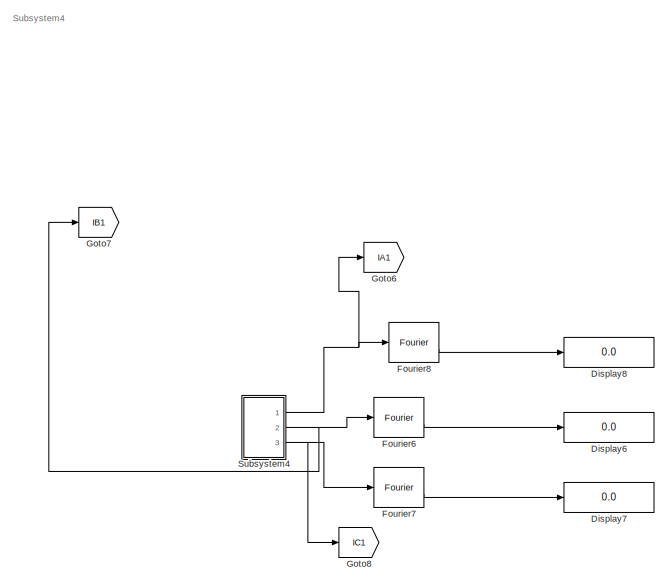
[diagram: root canvas - part 1/7, top center region]
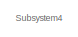
[diagram: root canvas - part 2/7, top left region]
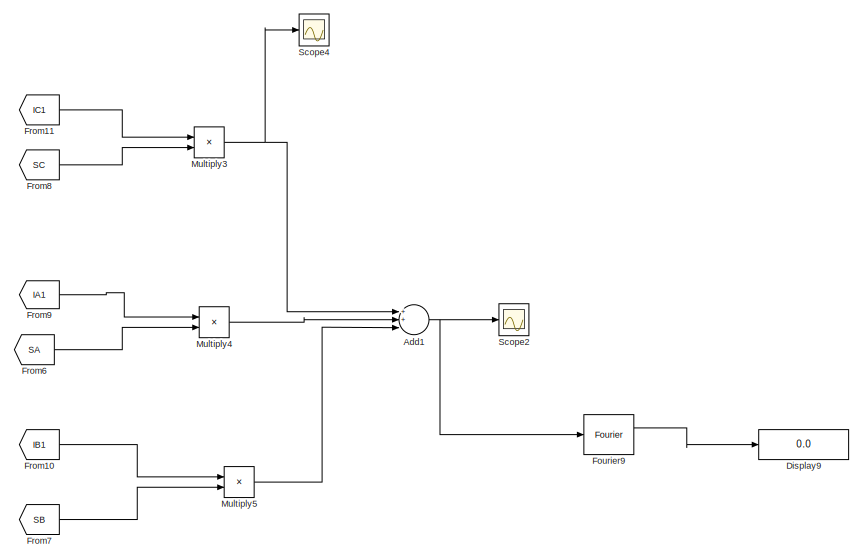
[diagram: root canvas - part 3/7, top right region]
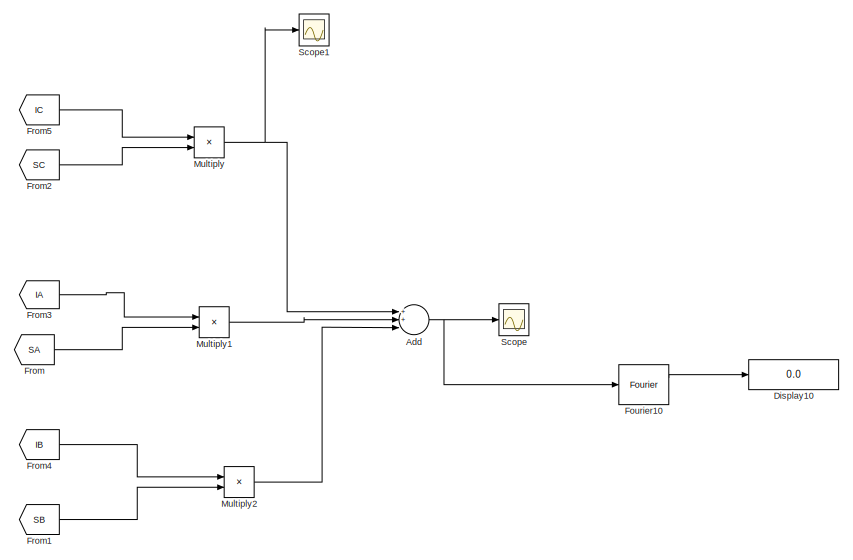
[diagram: root canvas - part 4/7, top center region]
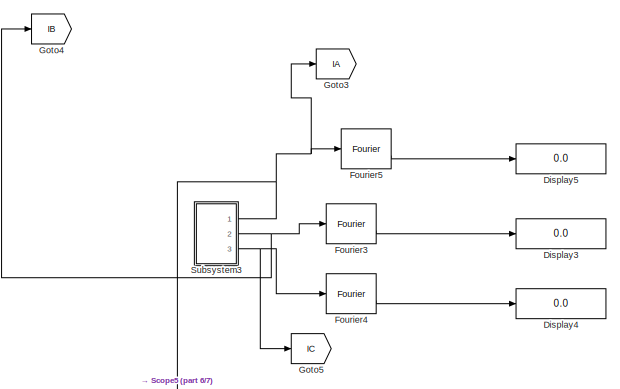
[diagram: root canvas - part 5/7, top left region]
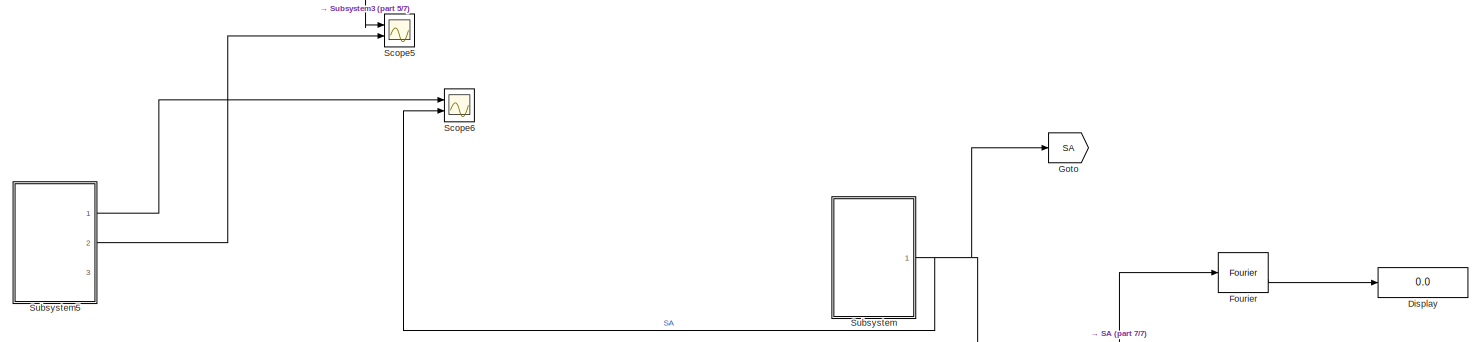
[diagram: root canvas - part 6/7, middle left region]
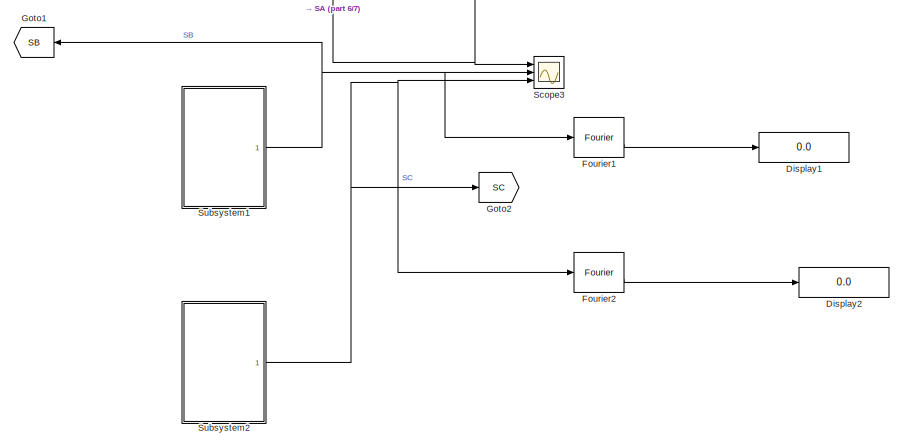
[diagram: root canvas - part 7/7, bottom left region]
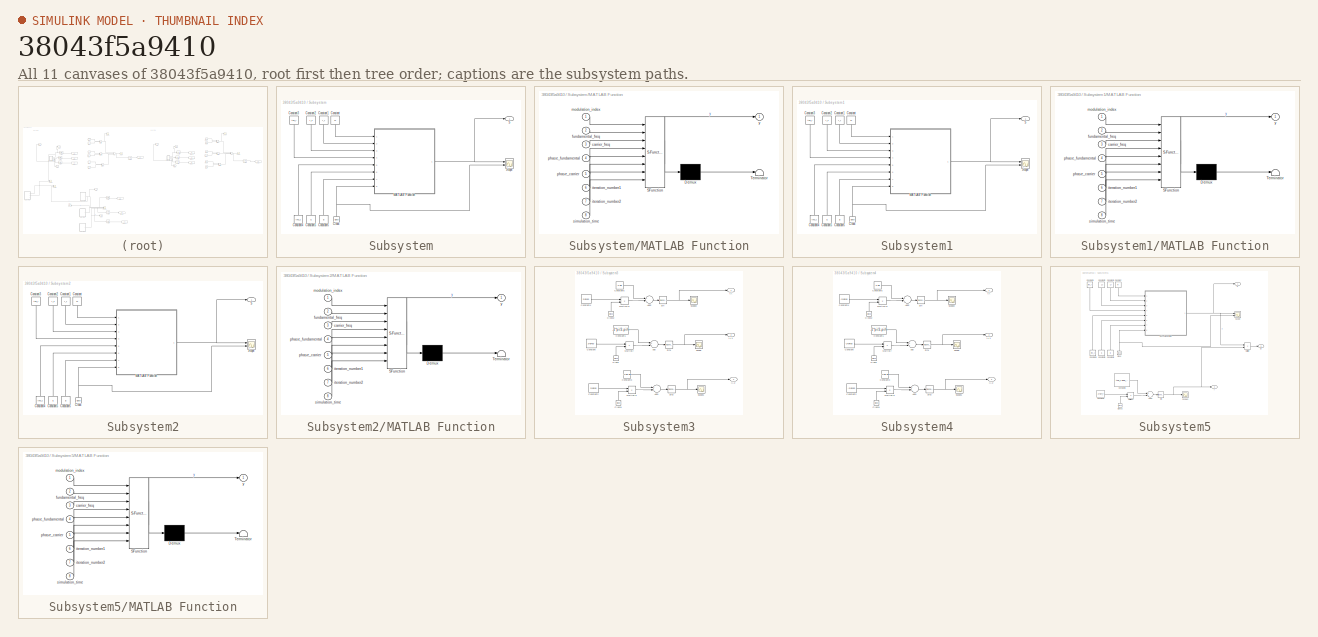
[diagram: thumbnail index - all 11 canvases of the model, root first then tree order]
MODEL slx_38043f5a9410
KIND model
CONFIG AbsTol = auto
CONFIG EnableMultiTasking = off
CONFIG FixedStep =     2.5000e-06
CONFIG MaxStep = auto
CONFIG MinStep = auto
CONFIG RelTol = 1e-3
CONFIG SampleTimeConstraint = Unconstrained
CONFIG Solver = FixedStepAuto
CONFIG SolverName = FixedStepAuto
CONFIG StartTime = 0.0
CONFIG StopTime = 0.08
BLOCK [Sum] Add
  InputSameDT = off
  Inputs = 3
  OutDataTypeStr = Inherit: Inherit via internal rule
  Ports = [3, 1]
  SaturateOnIntegerOverflow = off
BLOCK [Sum] Add1
  InputSameDT = off
  Inputs = 3
  OutDataTypeStr = Inherit: Inherit via internal rule
  Ports = [3, 1]
  SaturateOnIntegerOverflow = off
BLOCK [Display] Display
  Decimation = 1
  Ports = [1]
BLOCK [Display] Display1
  Decimation = 1
  Ports = [1]
BLOCK [Display] Display10
  Decimation = 1
  Ports = [1]
BLOCK [Display] Display2
  Decimation = 1
  Ports = [1]
BLOCK [Display] Display3
  Decimation = 1
  Ports = [1]
BLOCK [Display] Display4
  Decimation = 1
  Ports = [1]
BLOCK [Display] Display5
  Decimation = 1
  Ports = [1]
BLOCK [Display] Display6
  Decimation = 1
  Ports = [1]
BLOCK [Display] Display7
  Decimation = 1
  Ports = [1]
BLOCK [Display] Display8
  Decimation = 1
  Ports = [1]
BLOCK [Display] Display9
  Decimation = 1
  Ports = [1]
BLOCK [Reference] Fourier  REF=powerlib_meascontrol/Measurements/Fourier
  Ports = [1, 2]
  SourceBlock = powerlib_meascontrol/Measurements/Fourier
  SourceProductBaseCode = PS
  SourceProductName = Simscape Power Systems
  SourceType = Fourier
BLOCK [Reference] Fourier1  REF=powerlib_meascontrol/Measurements/Fourier
  Ports = [1, 2]
  SourceBlock = powerlib_meascontrol/Measurements/Fourier
  SourceProductBaseCode = PS
  SourceProductName = Simscape Power Systems
  SourceType = Fourier
BLOCK [Reference] Fourier10  REF=powerlib_meascontrol/Measurements/Fourier
  Ports = [1, 2]
  SourceBlock = powerlib_meascontrol/Measurements/Fourier
  SourceProductBaseCode = PS
  SourceProductName = Simscape Power Systems
  SourceType = Fourier
BLOCK [Reference] Fourier2  REF=powerlib_meascontrol/Measurements/Fourier
  Ports = [1, 2]
  SourceBlock = powerlib_meascontrol/Measurements/Fourier
  SourceProductBaseCode = PS
  SourceProductName = Simscape Power Systems
  SourceType = Fourier
BLOCK [Reference] Fourier3  REF=powerlib_meascontrol/Measurements/Fourier
  Ports = [1, 2]
  SourceBlock = powerlib_meascontrol/Measurements/Fourier
  SourceProductBaseCode = PS
  SourceProductName = Simscape Power Systems
  SourceType = Fourier
BLOCK [Reference] Fourier4  REF=powerlib_meascontrol/Measurements/Fourier
  Ports = [1, 2]
  SourceBlock = powerlib_meascontrol/Measurements/Fourier
  SourceProductBaseCode = PS
  SourceProductName = Simscape Power Systems
  SourceType = Fourier
BLOCK [Reference] Fourier5  REF=powerlib_meascontrol/Measurements/Fourier
  Ports = [1, 2]
  SourceBlock = powerlib_meascontrol/Measurements/Fourier
  SourceProductBaseCode = PS
  SourceProductName = Simscape Power Systems
  SourceType = Fourier
BLOCK [Reference] Fourier6  REF=powerlib_meascontrol/Measurements/Fourier
  Ports = [1, 2]
  SourceBlock = powerlib_meascontrol/Measurements/Fourier
  SourceProductBaseCode = PS
  SourceProductName = Simscape Power Systems
  SourceType = Fourier
BLOCK [Reference] Fourier7  REF=powerlib_meascontrol/Measurements/Fourier
  Ports = [1, 2]
  SourceBlock = powerlib_meascontrol/Measurements/Fourier
  SourceProductBaseCode = PS
  SourceProductName = Simscape Power Systems
  SourceType = Fourier
BLOCK [Reference] Fourier8  REF=powerlib_meascontrol/Measurements/Fourier
  Ports = [1, 2]
  SourceBlock = powerlib_meascontrol/Measurements/Fourier
  SourceProductBaseCode = PS
  SourceProductName = Simscape Power Systems
  SourceType = Fourier
BLOCK [Reference] Fourier9  REF=powerlib_meascontrol/Measurements/Fourier
  Ports = [1, 2]
  SourceBlock = powerlib_meascontrol/Measurements/Fourier
  SourceProductBaseCode = PS
  SourceProductName = Simscape Power Systems
  SourceType = Fourier
BLOCK [From] From
  GotoTag = SA
BLOCK [From] From1
  GotoTag = SB
BLOCK [From] From10
  GotoTag = IB1
BLOCK [From] From11
  GotoTag = IC1
BLOCK [From] From2
  GotoTag = SC
BLOCK [From] From3
  GotoTag = IA
BLOCK [From] From4
  GotoTag = IB
BLOCK [From] From5
  GotoTag = IC
BLOCK [From] From6
  GotoTag = SA
BLOCK [From] From7
  GotoTag = SB
BLOCK [From] From8
  GotoTag = SC
BLOCK [From] From9
  GotoTag = IA1
BLOCK [Goto] Goto
  GotoTag = SA
BLOCK [Goto] Goto1
  GotoTag = SB
BLOCK [Goto] Goto2
  GotoTag = SC
BLOCK [Goto] Goto3
  GotoTag = IA
BLOCK [Goto] Goto4
  GotoTag = IB
BLOCK [Goto] Goto5
  GotoTag = IC
BLOCK [Goto] Goto6
  GotoTag = IA1
BLOCK [Goto] Goto7
  GotoTag = IB1
BLOCK [Goto] Goto8
  GotoTag = IC1
BLOCK [Product] Multiply
  InputSameDT = off
  OutDataTypeStr = Inherit: Inherit via internal rule
  Ports = [2, 1]
  RndMeth = Floor
  SaturateOnIntegerOverflow = off
BLOCK [Product] Multiply1
  InputSameDT = off
  OutDataTypeStr = Inherit: Inherit via internal rule
  Ports = [2, 1]
  RndMeth = Floor
  SaturateOnIntegerOverflow = off
BLOCK [Product] Multiply2
  InputSameDT = off
  OutDataTypeStr = Inherit: Inherit via internal rule
  Ports = [2, 1]
  RndMeth = Floor
  SaturateOnIntegerOverflow = off
BLOCK [Product] Multiply3
  InputSameDT = off
  OutDataTypeStr = Inherit: Inherit via internal rule
  Ports = [2, 1]
  RndMeth = Floor
  SaturateOnIntegerOverflow = off
BLOCK [Product] Multiply4
  InputSameDT = off
  OutDataTypeStr = Inherit: Inherit via internal rule
  Ports = [2, 1]
  RndMeth = Floor
  SaturateOnIntegerOverflow = off
BLOCK [Product] Multiply5
  InputSameDT = off
  OutDataTypeStr = Inherit: Inherit via internal rule
  Ports = [2, 1]
  RndMeth = Floor
  SaturateOnIntegerOverflow = off
BLOCK [Scope] Scope
  Floating = off
  NumInputPorts = 1
  Ports = [1]
  ScopeSpecificationString = Simulink.scopes.TimeScopeBlockCfg('CurrentConfiguration', extmgr.ConfigurationSet(extmgr.Configuration('Core','General UI',true),extmgr.Configuration('Core','Source UI',true),extmgr.Configuration('Sources','WiredSimulink',true,'DataLoggingVariableName','ScopeData4'),extmgr.Configuration('Visuals','Time Domain',true,'SerializedDisplays',{struct('MinYLimReal','-0.27017','MaxYLimReal','1.19894','YLab...<+1439ch>
BLOCK [Scope] Scope1
  Floating = off
  NumInputPorts = 1
  Ports = [1]
  ScopeSpecificationString = Simulink.scopes.TimeScopeBlockCfg('CurrentConfiguration', extmgr.ConfigurationSet(extmgr.Configuration('Core','General UI',true),extmgr.Configuration('Core','Source UI',true),extmgr.Configuration('Sources','WiredSimulink',true,'DataLoggingVariableName','ScopeData5'),extmgr.Configuration('Visuals','Time Domain',true,'SerializedDisplays',{struct('MinYLimReal','-1.32626','MaxYLimReal','1.40179','YLab...<+1423ch>
BLOCK [Scope] Scope2
  Floating = off
  NumInputPorts = 1
  Ports = [1]
  ScopeSpecificationString = Simulink.scopes.TimeScopeBlockCfg('CurrentConfiguration', extmgr.ConfigurationSet(extmgr.Configuration('Core','General UI',true),extmgr.Configuration('Core','Source UI',true),extmgr.Configuration('Sources','WiredSimulink',true,'DataLoggingVariableName','ScopeData6'),extmgr.Configuration('Visuals','Time Domain',true,'SerializedDisplays',{struct('MinYLimReal','-1.31764','MaxYLimReal','1.28317','YLab...<+1441ch>
BLOCK [Scope] Scope3
  Floating = off
  NumInputPorts = 3
  Ports = [3]
  ScopeSpecificationString = Simulink.scopes.TimeScopeBlockCfg('CurrentConfiguration', extmgr.ConfigurationSet(extmgr.Configuration('Core','General UI',true,'FigureColor',[0.941176470588235 0.941176470588235 0.941176470588235]),extmgr.Configuration('Core','Source UI',true),extmgr.Configuration('Sources','WiredSimulink',true,'DataLoggingVariableName','ScopeData4'),extmgr.Configuration('Visuals','Time Domain',true,'SerializedDi...<+3165ch>
BLOCK [Scope] Scope4
  Floating = off
  NumInputPorts = 1
  Ports = [1]
  ScopeSpecificationString = Simulink.scopes.TimeScopeBlockCfg('CurrentConfiguration', extmgr.ConfigurationSet(extmgr.Configuration('Core','General UI',true),extmgr.Configuration('Core','Source UI',true),extmgr.Configuration('Sources','WiredSimulink',true,'DataLoggingVariableName','ScopeData7'),extmgr.Configuration('Visuals','Time Domain',true,'SerializedDisplays',{struct('MinYLimReal','-1.31418','MaxYLimReal','1.32978','YLab...<+1423ch>
BLOCK [Scope] Scope5
  Floating = off
  NumInputPorts = 2
  Ports = [2]
  ScopeSpecificationString = Simulink.scopes.TimeScopeBlockCfg('CurrentConfiguration', extmgr.ConfigurationSet(extmgr.Configuration('Core','General UI',true),extmgr.Configuration('Core','Source UI',true),extmgr.Configuration('Sources','WiredSimulink',true,'DataLoggingVariableName','ScopeData2'),extmgr.Configuration('Visuals','Time Domain',true,'SerializedDisplays',{struct('MinYLimReal','-1.25','MaxYLimReal','1.25','YLabelReal...<+1368ch>
BLOCK [Scope] Scope6
  Floating = off
  NumInputPorts = 2
  Ports = [2]
  ScopeSpecificationString = Simulink.scopes.TimeScopeBlockCfg('CurrentConfiguration', extmgr.ConfigurationSet(extmgr.Configuration('Core','General UI',true),extmgr.Configuration('Core','Source UI',true),extmgr.Configuration('Sources','WiredSimulink',true,'DataLoggingVariableName','ScopeData3'),extmgr.Configuration('Visuals','Time Domain',true,'SerializedDisplays',{struct('MinYLimReal','-0.1825','MaxYLimReal','1.21085','YLabe...<+1467ch>
BLOCK [SubSystem] Subsystem
  Ports = [0, 1]
  RequestExecContextInheritance = off
BLOCK [Clock] Subsystem/Clock
  Decimation = 1
  DisplayTime = on
BLOCK [Constant] Subsystem/Constant
  Value = m
BLOCK [Constant] Subsystem/Constant1
  Value = f_f
BLOCK [Constant] Subsystem/Constant2
  Value = f_s
BLOCK [Constant] Subsystem/Constant3
  Value = the_f
BLOCK [Constant] Subsystem/Constant4
  Value = the_c
BLOCK [Constant] Subsystem/Constant5
  Value = i1
BLOCK [Constant] Subsystem/Constant6
  Value = i2
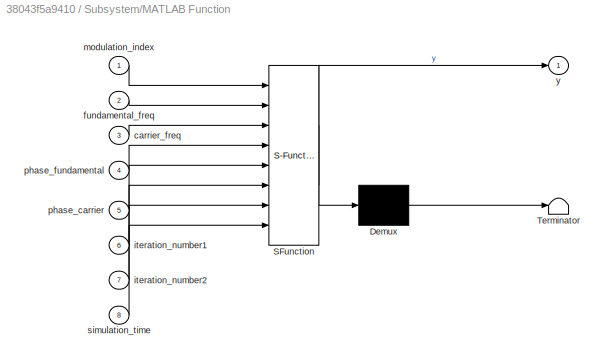
BLOCK [SubSystem] Subsystem/MATLAB Function
  ErrorFcn = Stateflow.Translate.translate
  PermitHierarchicalResolution = ExplicitOnly
  Ports = [8, 1]
  RequestExecContextInheritance = off
  SFBlockType = MATLAB Function
  TreatAsAtomicUnit = on
BLOCK [Demux] Subsystem/MATLAB Function/ Demux 
  Outputs = 1
  Ports = [1, 1]
BLOCK [S-Function] Subsystem/MATLAB Function/ SFunction 
  EnableBusSupport = on
  FunctionName = sf_sfun
  PortCounts = [8 2]
  Ports = [8, 2]
  SFcnIsStateOwnerBlock = off
  SFunctionDeploymentMode = off
  Tag = Stateflow S-Function switching_mask 2
BLOCK [Terminator] Subsystem/MATLAB Function/ Terminator 
BLOCK [Inport] Subsystem/MATLAB Function/carrier_freq
  IconDisplay = Port number
  Port = 3
BLOCK [Inport] Subsystem/MATLAB Function/fundamental_freq
  IconDisplay = Port number
  Port = 2
BLOCK [Inport] Subsystem/MATLAB Function/iteration_number1
  IconDisplay = Port number
  Port = 6
BLOCK [Inport] Subsystem/MATLAB Function/iteration_number2
  IconDisplay = Port number
  Port = 7
BLOCK [Inport] Subsystem/MATLAB Function/modulation_index
  IconDisplay = Port number
BLOCK [Inport] Subsystem/MATLAB Function/phase_carrier
  IconDisplay = Port number
  Port = 5
BLOCK [Inport] Subsystem/MATLAB Function/phase_fundamental
  IconDisplay = Port number
  Port = 4
BLOCK [Inport] Subsystem/MATLAB Function/simulation_time
  IconDisplay = Port number
  Port = 8
BLOCK [Outport] Subsystem/MATLAB Function/y
  IconDisplay = Port number
BLOCK [Outport] Subsystem/S
  IconDisplay = Port number
BLOCK [Scope] Subsystem/Scope
  Floating = off
  NumInputPorts = 2
  Ports = [2]
  ScopeSpecificationString = Simulink.scopes.TimeScopeBlockCfg('CurrentConfiguration', extmgr.ConfigurationSet(extmgr.Configuration('Core','General UI',true),extmgr.Configuration('Core','Source UI',true),extmgr.Configuration('Sources','WiredSimulink',true),extmgr.Configuration('Visuals','Time Domain',true,'SerializedDisplays',{struct('MinYLimReal','-0.23876','MaxYLimReal','1.24537','YLabelReal','','MinYLimMag','0.00000','MaxY...<+1421ch>  <repeated x4 — deduplicated; at blocks: Scope>
BLOCK [SubSystem] Subsystem1
  Ports = [0, 1]
  RequestExecContextInheritance = off
BLOCK [Clock] Subsystem1/Clock
  Decimation = 1
  DisplayTime = on
BLOCK [Constant] Subsystem1/Constant
  Value = m
BLOCK [Constant] Subsystem1/Constant1
  Value = f_f
BLOCK [Constant] Subsystem1/Constant2
  Value = f_s
BLOCK [Constant] Subsystem1/Constant3
  Value = the_f
BLOCK [Constant] Subsystem1/Constant4
  Value = the_c
BLOCK [Constant] Subsystem1/Constant5
  Value = i1
BLOCK [Constant] Subsystem1/Constant6
  Value = i2
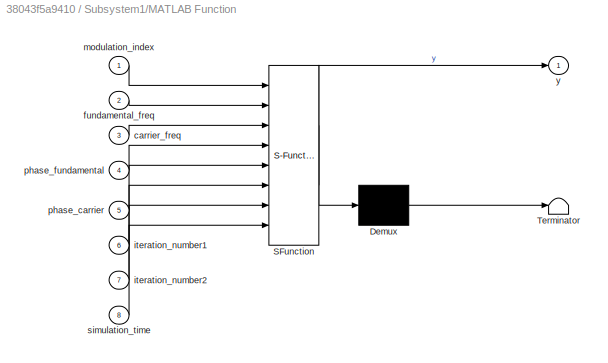
BLOCK [SubSystem] Subsystem1/MATLAB Function
  ErrorFcn = Stateflow.Translate.translate
  PermitHierarchicalResolution = ExplicitOnly
  Ports = [8, 1]
  RequestExecContextInheritance = off
  SFBlockType = MATLAB Function
  TreatAsAtomicUnit = on
BLOCK [Demux] Subsystem1/MATLAB Function/ Demux 
  Outputs = 1
  Ports = [1, 1]
BLOCK [S-Function] Subsystem1/MATLAB Function/ SFunction 
  EnableBusSupport = on
  FunctionName = sf_sfun
  PortCounts = [8 2]
  Ports = [8, 2]
  SFcnIsStateOwnerBlock = off
  SFunctionDeploymentMode = off
  Tag = Stateflow S-Function switching_mask 1
BLOCK [Terminator] Subsystem1/MATLAB Function/ Terminator 
BLOCK [Inport] Subsystem1/MATLAB Function/carrier_freq
  IconDisplay = Port number
  Port = 3
BLOCK [Inport] Subsystem1/MATLAB Function/fundamental_freq
  IconDisplay = Port number
  Port = 2
BLOCK [Inport] Subsystem1/MATLAB Function/iteration_number1
  IconDisplay = Port number
  Port = 6
BLOCK [Inport] Subsystem1/MATLAB Function/iteration_number2
  IconDisplay = Port number
  Port = 7
BLOCK [Inport] Subsystem1/MATLAB Function/modulation_index
  IconDisplay = Port number
BLOCK [Inport] Subsystem1/MATLAB Function/phase_carrier
  IconDisplay = Port number
  Port = 5
BLOCK [Inport] Subsystem1/MATLAB Function/phase_fundamental
  IconDisplay = Port number
  Port = 4
BLOCK [Inport] Subsystem1/MATLAB Function/simulation_time
  IconDisplay = Port number
  Port = 8
BLOCK [Outport] Subsystem1/MATLAB Function/y
  IconDisplay = Port number
BLOCK [Outport] Subsystem1/S
  IconDisplay = Port number
BLOCK [Scope] Subsystem1/Scope
  Floating = off
  NumInputPorts = 2
  Ports = [2]
BLOCK [SubSystem] Subsystem2
  Ports = [0, 1]
  RequestExecContextInheritance = off
BLOCK [Clock] Subsystem2/Clock
  Decimation = 1
  DisplayTime = on
BLOCK [Constant] Subsystem2/Constant
  Value = m
BLOCK [Constant] Subsystem2/Constant1
  Value = f_f
BLOCK [Constant] Subsystem2/Constant2
  Value = f_s
BLOCK [Constant] Subsystem2/Constant3
  Value = the_f
BLOCK [Constant] Subsystem2/Constant4
  Value = the_c
BLOCK [Constant] Subsystem2/Constant5
  Value = i1
BLOCK [Constant] Subsystem2/Constant6
  Value = i2
BLOCK [SubSystem] Subsystem2/MATLAB Function
  ErrorFcn = Stateflow.Translate.translate
  PermitHierarchicalResolution = ExplicitOnly
  Ports = [8, 1]
  RequestExecContextInheritance = off
  SFBlockType = MATLAB Function
  TreatAsAtomicUnit = on
BLOCK [Demux] Subsystem2/MATLAB Function/ Demux 
  Outputs = 1
  Ports = [1, 1]
BLOCK [S-Function] Subsystem2/MATLAB Function/ SFunction 
  EnableBusSupport = on
  FunctionName = sf_sfun
  PortCounts = [8 2]
  Ports = [8, 2]
  SFcnIsStateOwnerBlock = off
  SFunctionDeploymentMode = off
  Tag = Stateflow S-Function switching_mask 3
BLOCK [Terminator] Subsystem2/MATLAB Function/ Terminator 
BLOCK [Inport] Subsystem2/MATLAB Function/carrier_freq
  IconDisplay = Port number
  Port = 3
BLOCK [Inport] Subsystem2/MATLAB Function/fundamental_freq
  IconDisplay = Port number
  Port = 2
BLOCK [Inport] Subsystem2/MATLAB Function/iteration_number1
  IconDisplay = Port number
  Port = 6
BLOCK [Inport] Subsystem2/MATLAB Function/iteration_number2
  IconDisplay = Port number
  Port = 7
BLOCK [Inport] Subsystem2/MATLAB Function/modulation_index
  IconDisplay = Port number
BLOCK [Inport] Subsystem2/MATLAB Function/phase_carrier
  IconDisplay = Port number
  Port = 5
BLOCK [Inport] Subsystem2/MATLAB Function/phase_fundamental
  IconDisplay = Port number
  Port = 4
BLOCK [Inport] Subsystem2/MATLAB Function/simulation_time
  IconDisplay = Port number
  Port = 8
BLOCK [Outport] Subsystem2/MATLAB Function/y
  IconDisplay = Port number
BLOCK [Outport] Subsystem2/S
  IconDisplay = Port number
BLOCK [Scope] Subsystem2/Scope
  Floating = off
  NumInputPorts = 2
  Ports = [2]
BLOCK [SubSystem] Subsystem3
  Ports = [0, 3]
  RequestExecContextInheritance = off
BLOCK [Sum] Subsystem3/Add
  InputSameDT = off
  OutDataTypeStr = Inherit: Inherit via internal rule
  Ports = [2, 1]
  SaturateOnIntegerOverflow = off
BLOCK [Sum] Subsystem3/Add1
  InputSameDT = off
  OutDataTypeStr = Inherit: Inherit via internal rule
  Ports = [2, 1]
  SaturateOnIntegerOverflow = off
BLOCK [Sum] Subsystem3/Add2
  InputSameDT = off
  OutDataTypeStr = Inherit: Inherit via internal rule
  Ports = [2, 1]
  SaturateOnIntegerOverflow = off
BLOCK [Clock] Subsystem3/Clock
BLOCK [Clock] Subsystem3/Clock1
BLOCK [Clock] Subsystem3/Clock2
BLOCK [Constant] Subsystem3/Constant
  Value = 2*pi*50
BLOCK [Constant] Subsystem3/Constant1
  Value = -2*pi/3-pi/6
BLOCK [Constant] Subsystem3/Constant2
  Value = 2*pi*50
BLOCK [Constant] Subsystem3/Constant3
  Value = 2*pi/3-pi/6
BLOCK [Constant] Subsystem3/Constant4
  Value = 2*pi*50
BLOCK [Constant] Subsystem3/Constant5
  Value = 0-pi/6
BLOCK [Outport] Subsystem3/IA 
  IconDisplay = Port number
BLOCK [Outport] Subsystem3/IA 1
  IconDisplay = Port number
  Port = 2
BLOCK [Outport] Subsystem3/IA 2
  IconDisplay = Port number
  Port = 3
BLOCK [Product] Subsystem3/Multiply
  InputSameDT = off
  OutDataTypeStr = Inherit: Inherit via internal rule
  Ports = [2, 1]
  RndMeth = Floor
  SaturateOnIntegerOverflow = off
BLOCK [Product] Subsystem3/Multiply1
  InputSameDT = off
  OutDataTypeStr = Inherit: Inherit via internal rule
  Ports = [2, 1]
  RndMeth = Floor
  SaturateOnIntegerOverflow = off
BLOCK [Product] Subsystem3/Multiply2
  InputSameDT = off
  OutDataTypeStr = Inherit: Inherit via internal rule
  Ports = [2, 1]
  RndMeth = Floor
  SaturateOnIntegerOverflow = off
BLOCK [Scope] Subsystem3/Scope
  Floating = off
  NumInputPorts = 1
  Ports = [1]
  ScopeSpecificationString = Simulink.scopes.TimeScopeBlockCfg('CurrentConfiguration', extmgr.ConfigurationSet(extmgr.Configuration('Core','General UI',true),extmgr.Configuration('Core','Source UI',true),extmgr.Configuration('Sources','WiredSimulink',true,'DataLoggingVariableName','ScopeData1'),extmgr.Configuration('Visuals','Time Domain',true,'SerializedDisplays',{struct('MinYLimReal','-1.25','MaxYLimReal','1.25','YLabelReal...<+1378ch>
BLOCK [Scope] Subsystem3/Scope1
  Floating = off
  NumInputPorts = 1
  Ports = [1]
  ScopeSpecificationString = Simulink.scopes.TimeScopeBlockCfg('CurrentConfiguration', extmgr.ConfigurationSet(extmgr.Configuration('Core','General UI',true),extmgr.Configuration('Core','Source UI',true),extmgr.Configuration('Sources','WiredSimulink',true,'DataLoggingVariableName','ScopeData2'),extmgr.Configuration('Visuals','Time Domain',true,'SerializedDisplays',{struct('MinYLimReal','-1.25','MaxYLimReal','1.25','YLabelReal...<+1379ch>
BLOCK [Scope] Subsystem3/Scope2
  Floating = off
  NumInputPorts = 1
  Ports = [1]
  ScopeSpecificationString = Simulink.scopes.TimeScopeBlockCfg('CurrentConfiguration', extmgr.ConfigurationSet(extmgr.Configuration('Core','General UI',true),extmgr.Configuration('Core','Source UI',true),extmgr.Configuration('Sources','WiredSimulink',true,'DataLoggingVariableName','ScopeData3'),extmgr.Configuration('Visuals','Time Domain',true,'SerializedDisplays',{struct('MinYLimReal','-1.25','MaxYLimReal','1.25','YLabelReal...<+1376ch>
BLOCK [Trigonometry] Subsystem3/Sin
  Ports = [1, 1]
BLOCK [Trigonometry] Subsystem3/Sin1
  Ports = [1, 1]
BLOCK [Trigonometry] Subsystem3/Sin2
  Ports = [1, 1]
BLOCK [SubSystem] Subsystem4
  Ports = [0, 3]
  RequestExecContextInheritance = off
BLOCK [Sum] Subsystem4/Add
  InputSameDT = off
  OutDataTypeStr = Inherit: Inherit via internal rule
  Ports = [2, 1]
  SaturateOnIntegerOverflow = off
BLOCK [Sum] Subsystem4/Add1
  InputSameDT = off
  OutDataTypeStr = Inherit: Inherit via internal rule
  Ports = [2, 1]
  SaturateOnIntegerOverflow = off
BLOCK [Sum] Subsystem4/Add2
  InputSameDT = off
  OutDataTypeStr = Inherit: Inherit via internal rule
  Ports = [2, 1]
  SaturateOnIntegerOverflow = off
BLOCK [Clock] Subsystem4/Clock
BLOCK [Clock] Subsystem4/Clock1
BLOCK [Clock] Subsystem4/Clock2
BLOCK [Constant] Subsystem4/Constant
  Value = -2*pi*50
BLOCK [Constant] Subsystem4/Constant1
  Value = -2*pi/3-pi/6
BLOCK [Constant] Subsystem4/Constant2
  Value = -2*pi*50
BLOCK [Constant] Subsystem4/Constant3
  Value = 2*pi/3-pi/6
BLOCK [Constant] Subsystem4/Constant4
  Value = -2*pi*50
BLOCK [Constant] Subsystem4/Constant5
  Value = 0-pi/6
BLOCK [Outport] Subsystem4/IA 
  IconDisplay = Port number
BLOCK [Outport] Subsystem4/IA 1
  IconDisplay = Port number
  Port = 2
BLOCK [Outport] Subsystem4/IA 2
  IconDisplay = Port number
  Port = 3
BLOCK [Product] Subsystem4/Multiply
  InputSameDT = off
  OutDataTypeStr = Inherit: Inherit via internal rule
  Ports = [2, 1]
  RndMeth = Floor
  SaturateOnIntegerOverflow = off
BLOCK [Product] Subsystem4/Multiply1
  InputSameDT = off
  OutDataTypeStr = Inherit: Inherit via internal rule
  Ports = [2, 1]
  RndMeth = Floor
  SaturateOnIntegerOverflow = off
BLOCK [Product] Subsystem4/Multiply2
  InputSameDT = off
  OutDataTypeStr = Inherit: Inherit via internal rule
  Ports = [2, 1]
  RndMeth = Floor
  SaturateOnIntegerOverflow = off
BLOCK [Scope] Subsystem4/Scope
  Floating = off
  NumInputPorts = 1
  Ports = [1]
  ScopeSpecificationString = Simulink.scopes.TimeScopeBlockCfg('CurrentConfiguration', extmgr.ConfigurationSet(extmgr.Configuration('Core','General UI',true),extmgr.Configuration('Core','Source UI',true),extmgr.Configuration('Sources','WiredSimulink',true,'DataLoggingVariableName','ScopeData1'),extmgr.Configuration('Visuals','Time Domain',true,'SerializedDisplays',{struct('MinYLimReal','-1.25','MaxYLimReal','1.25','YLabelReal...<+1378ch>
BLOCK [Scope] Subsystem4/Scope1
  Floating = off
  NumInputPorts = 1
  Ports = [1]
  ScopeSpecificationString = Simulink.scopes.TimeScopeBlockCfg('CurrentConfiguration', extmgr.ConfigurationSet(extmgr.Configuration('Core','General UI',true),extmgr.Configuration('Core','Source UI',true),extmgr.Configuration('Sources','WiredSimulink',true,'DataLoggingVariableName','ScopeData2'),extmgr.Configuration('Visuals','Time Domain',true,'SerializedDisplays',{struct('MinYLimReal','-1.25','MaxYLimReal','1.25','YLabelReal...<+1379ch>
BLOCK [Scope] Subsystem4/Scope2
  Floating = off
  NumInputPorts = 1
  Ports = [1]
  ScopeSpecificationString = Simulink.scopes.TimeScopeBlockCfg('CurrentConfiguration', extmgr.ConfigurationSet(extmgr.Configuration('Core','General UI',true),extmgr.Configuration('Core','Source UI',true),extmgr.Configuration('Sources','WiredSimulink',true,'DataLoggingVariableName','ScopeData3'),extmgr.Configuration('Visuals','Time Domain',true,'SerializedDisplays',{struct('MinYLimReal','-1.25','MaxYLimReal','1.25','YLabelReal...<+1376ch>
BLOCK [Trigonometry] Subsystem4/Sin
  Ports = [1, 1]
BLOCK [Trigonometry] Subsystem4/Sin1
  Ports = [1, 1]
BLOCK [Trigonometry] Subsystem4/Sin2
  Ports = [1, 1]
BLOCK [SubSystem] Subsystem5
  Ports = [0, 3]
  RequestExecContextInheritance = off
BLOCK [Sum] Subsystem5/Add2
  InputSameDT = off
  OutDataTypeStr = Inherit: Inherit via internal rule
  Ports = [2, 1]
  SaturateOnIntegerOverflow = off
BLOCK [Clock] Subsystem5/Clock
  Decimation = 1
  DisplayTime = on
BLOCK [Clock] Subsystem5/Clock2
BLOCK [Constant] Subsystem5/Constant
  Value = m
BLOCK [Constant] Subsystem5/Constant1
  Value = f_f
BLOCK [Constant] Subsystem5/Constant2
  Value = f_s
BLOCK [Constant] Subsystem5/Constant3
  Value = the_f
BLOCK [Constant] Subsystem5/Constant4
  Value = the_c
BLOCK [Constant] Subsystem5/Constant5
  Value = i1
BLOCK [Constant] Subsystem5/Constant6
  Value = i2
BLOCK [Constant] Subsystem5/Constant7
  Value = 2*pi*f_f
BLOCK [Constant] Subsystem5/Constant8
  Value = the_f-load_phase
BLOCK [Outport] Subsystem5/I 
  IconDisplay = Port number
  Port = 2
BLOCK [SubSystem] Subsystem5/MATLAB Function
  ErrorFcn = Stateflow.Translate.translate
  PermitHierarchicalResolution = ExplicitOnly
  Ports = [8, 1]
  RequestExecContextInheritance = off
  SFBlockType = MATLAB Function
  TreatAsAtomicUnit = on
BLOCK [Demux] Subsystem5/MATLAB Function/ Demux 
  Outputs = 1
  Ports = [1, 1]
BLOCK [S-Function] Subsystem5/MATLAB Function/ SFunction 
  EnableBusSupport = on
  FunctionName = sf_sfun
  PortCounts = [8 2]
  Ports = [8, 2]
  SFcnIsStateOwnerBlock = off
  SFunctionDeploymentMode = off
  Tag = Stateflow S-Function switching_mask 4
BLOCK [Terminator] Subsystem5/MATLAB Function/ Terminator 
BLOCK [Inport] Subsystem5/MATLAB Function/carrier_freq
  IconDisplay = Port number
  Port = 3
BLOCK [Inport] Subsystem5/MATLAB Function/fundamental_freq
  IconDisplay = Port number
  Port = 2
BLOCK [Inport] Subsystem5/MATLAB Function/iteration_number1
  IconDisplay = Port number
  Port = 6
BLOCK [Inport] Subsystem5/MATLAB Function/iteration_number2
  IconDisplay = Port number
  Port = 7
BLOCK [Inport] Subsystem5/MATLAB Function/modulation_index
  IconDisplay = Port number
BLOCK [Inport] Subsystem5/MATLAB Function/phase_carrier
  IconDisplay = Port number
  Port = 5
BLOCK [Inport] Subsystem5/MATLAB Function/phase_fundamental
  IconDisplay = Port number
  Port = 4
BLOCK [Inport] Subsystem5/MATLAB Function/simulation_time
  IconDisplay = Port number
  Port = 8
BLOCK [Outport] Subsystem5/MATLAB Function/y
  IconDisplay = Port number
BLOCK [Product] Subsystem5/Multiply
  InputSameDT = off
  OutDataTypeStr = Inherit: Inherit via internal rule
  Ports = [2, 1]
  RndMeth = Floor
  SaturateOnIntegerOverflow = off
BLOCK [Product] Subsystem5/Multiply2
  InputSameDT = off
  OutDataTypeStr = Inherit: Inherit via internal rule
  Ports = [2, 1]
  RndMeth = Floor
  SaturateOnIntegerOverflow = off
BLOCK [Outport] Subsystem5/S
  IconDisplay = Port number
BLOCK [Outport] Subsystem5/SI
  IconDisplay = Port number
  Port = 3
BLOCK [Scope] Subsystem5/Scope
  Floating = off
  NumInputPorts = 2
  Ports = [2]
BLOCK [Scope] Subsystem5/Scope2
  Floating = off
  NumInputPorts = 1
  Ports = [1]
  ScopeSpecificationString = Simulink.scopes.TimeScopeBlockCfg('CurrentConfiguration', extmgr.ConfigurationSet(extmgr.Configuration('Core','General UI',true),extmgr.Configuration('Core','Source UI',true),extmgr.Configuration('Sources','WiredSimulink',true,'DataLoggingVariableName','ScopeData1'),extmgr.Configuration('Visuals','Time Domain',true,'SerializedDisplays',{struct('MinYLimReal','-1.25','MaxYLimReal','1.25','YLabelReal...<+1376ch>
BLOCK [Trigonometry] Subsystem5/Sin
  Ports = [1, 1]
ANNOTATION (root): Subsystem4
NET Add1:1 -> Fourier9:1, Scope2:1
NET Add:1 -> Fourier10:1, Scope:1
LINE Fourier10:1 -> Display10:1
LINE Fourier1:2 -> Display1:1
LINE Fourier2:2 -> Display2:1
LINE Fourier3:2 -> Display3:1
LINE Fourier4:2 -> Display4:1
LINE Fourier5:2 -> Display5:1
LINE Fourier6:2 -> Display6:1
LINE Fourier7:2 -> Display7:1
LINE Fourier8:2 -> Display8:1
LINE Fourier9:1 -> Display9:1
LINE Fourier:2 -> Display:1
LINE From10:1 -> Multiply5:1
LINE From11:1 -> Multiply3:1
LINE From1:1 -> Multiply2:2
LINE From2:1 -> Multiply:2
LINE From3:1 -> Multiply1:1
LINE From4:1 -> Multiply2:1
LINE From5:1 -> Multiply:1
LINE From6:1 -> Multiply4:2
LINE From7:1 -> Multiply5:2
LINE From8:1 -> Multiply3:2
LINE From9:1 -> Multiply4:1
LINE From:1 -> Multiply1:2
LINE Multiply1:1 -> Add:2
LINE Multiply2:1 -> Add:3
NET Multiply3:1 -> Add1:1, Scope4:1
LINE Multiply4:1 -> Add1:2
LINE Multiply5:1 -> Add1:3
NET Multiply:1 -> Add:1, Scope1:1
NET Subsystem/Clock:1 -> Subsystem/MATLAB Function:8, Subsystem/Scope:2
LINE Subsystem/Constant1:1 -> Subsystem/MATLAB Function:2
LINE Subsystem/Constant2:1 -> Subsystem/MATLAB Function:3
LINE Subsystem/Constant3:1 -> Subsystem/MATLAB Function:4
LINE Subsystem/Constant4:1 -> Subsystem/MATLAB Function:5
LINE Subsystem/Constant5:1 -> Subsystem/MATLAB Function:6
LINE Subsystem/Constant6:1 -> Subsystem/MATLAB Function:7
LINE Subsystem/Constant:1 -> Subsystem/MATLAB Function:1
NET Subsystem/MATLAB Function:1 -> Subsystem/S:1, Subsystem/Scope:1
NET Subsystem1/Clock:1 -> Subsystem1/MATLAB Function:8, Subsystem1/Scope:2
LINE Subsystem1/Constant1:1 -> Subsystem1/MATLAB Function:2
LINE Subsystem1/Constant2:1 -> Subsystem1/MATLAB Function:3
LINE Subsystem1/Constant3:1 -> Subsystem1/MATLAB Function:4
LINE Subsystem1/Constant4:1 -> Subsystem1/MATLAB Function:5
LINE Subsystem1/Constant5:1 -> Subsystem1/MATLAB Function:6
LINE Subsystem1/Constant6:1 -> Subsystem1/MATLAB Function:7
LINE Subsystem1/Constant:1 -> Subsystem1/MATLAB Function:1
NET Subsystem1/MATLAB Function:1 -> Subsystem1/S:1, Subsystem1/Scope:1
NET Subsystem1:1 -> Fourier1:1, Goto1:1, Scope3:2
NET Subsystem2/Clock:1 -> Subsystem2/MATLAB Function:8, Subsystem2/Scope:2
LINE Subsystem2/Constant1:1 -> Subsystem2/MATLAB Function:2
LINE Subsystem2/Constant2:1 -> Subsystem2/MATLAB Function:3
LINE Subsystem2/Constant3:1 -> Subsystem2/MATLAB Function:4
LINE Subsystem2/Constant4:1 -> Subsystem2/MATLAB Function:5
LINE Subsystem2/Constant5:1 -> Subsystem2/MATLAB Function:6
LINE Subsystem2/Constant6:1 -> Subsystem2/MATLAB Function:7
LINE Subsystem2/Constant:1 -> Subsystem2/MATLAB Function:1
NET Subsystem2/MATLAB Function:1 -> Subsystem2/S:1, Subsystem2/Scope:1
NET Subsystem2:1 -> Fourier2:1, Goto2:1, Scope3:3
LINE Subsystem3/Add1:1 -> Subsystem3/Sin2:1
LINE Subsystem3/Add2:1 -> Subsystem3/Sin:1
LINE Subsystem3/Add:1 -> Subsystem3/Sin1:1
LINE Subsystem3/Clock1:1 -> Subsystem3/Multiply1:2
LINE Subsystem3/Clock2:1 -> Subsystem3/Multiply2:2
LINE Subsystem3/Clock:1 -> Subsystem3/Multiply:2
LINE Subsystem3/Constant1:1 -> Subsystem3/Add:1
LINE Subsystem3/Constant2:1 -> Subsystem3/Multiply1:1
LINE Subsystem3/Constant3:1 -> Subsystem3/Add1:1
LINE Subsystem3/Constant4:1 -> Subsystem3/Multiply2:1
LINE Subsystem3/Constant5:1 -> Subsystem3/Add2:1
LINE Subsystem3/Constant:1 -> Subsystem3/Multiply:1
LINE Subsystem3/Multiply1:1 -> Subsystem3/Add1:2
LINE Subsystem3/Multiply2:1 -> Subsystem3/Add2:2
LINE Subsystem3/Multiply:1 -> Subsystem3/Add:2
NET Subsystem3/Sin1:1 -> Subsystem3/IA 1:1, Subsystem3/Scope:1
NET Subsystem3/Sin2:1 -> Subsystem3/IA 2:1, Subsystem3/Scope1:1
NET Subsystem3/Sin:1 -> Subsystem3/IA :1, Subsystem3/Scope2:1
NET Subsystem3:1 -> Fourier5:1, Goto3:1, Scope5:1
NET Subsystem3:2 -> Fourier3:1, Goto4:1
NET Subsystem3:3 -> Fourier4:1, Goto5:1
LINE Subsystem4/Add1:1 -> Subsystem4/Sin2:1
LINE Subsystem4/Add2:1 -> Subsystem4/Sin:1
LINE Subsystem4/Add:1 -> Subsystem4/Sin1:1
LINE Subsystem4/Clock1:1 -> Subsystem4/Multiply1:2
LINE Subsystem4/Clock2:1 -> Subsystem4/Multiply2:2
LINE Subsystem4/Clock:1 -> Subsystem4/Multiply:2
LINE Subsystem4/Constant1:1 -> Subsystem4/Add:1
LINE Subsystem4/Constant2:1 -> Subsystem4/Multiply1:1
LINE Subsystem4/Constant3:1 -> Subsystem4/Add1:1
LINE Subsystem4/Constant4:1 -> Subsystem4/Multiply2:1
LINE Subsystem4/Constant5:1 -> Subsystem4/Add2:1
LINE Subsystem4/Constant:1 -> Subsystem4/Multiply:1
LINE Subsystem4/Multiply1:1 -> Subsystem4/Add1:2
LINE Subsystem4/Multiply2:1 -> Subsystem4/Add2:2
LINE Subsystem4/Multiply:1 -> Subsystem4/Add:2
NET Subsystem4/Sin1:1 -> Subsystem4/IA 1:1, Subsystem4/Scope:1
NET Subsystem4/Sin2:1 -> Subsystem4/IA 2:1, Subsystem4/Scope1:1
NET Subsystem4/Sin:1 -> Subsystem4/IA :1, Subsystem4/Scope2:1
NET Subsystem4:1 -> Fourier8:1, Goto6:1
NET Subsystem4:2 -> Fourier6:1, Goto7:1
NET Subsystem4:3 -> Fourier7:1, Goto8:1
LINE Subsystem5/Add2:1 -> Subsystem5/Sin:1
LINE Subsystem5/Clock2:1 -> Subsystem5/Multiply2:2
NET Subsystem5/Clock:1 -> Subsystem5/MATLAB Function:8, Subsystem5/Scope:2
LINE Subsystem5/Constant1:1 -> Subsystem5/MATLAB Function:2
LINE Subsystem5/Constant2:1 -> Subsystem5/MATLAB Function:3
LINE Subsystem5/Constant3:1 -> Subsystem5/MATLAB Function:4
LINE Subsystem5/Constant4:1 -> Subsystem5/MATLAB Function:5
LINE Subsystem5/Constant5:1 -> Subsystem5/MATLAB Function:6
LINE Subsystem5/Constant6:1 -> Subsystem5/MATLAB Function:7
LINE Subsystem5/Constant7:1 -> Subsystem5/Multiply2:1
LINE Subsystem5/Constant8:1 -> Subsystem5/Add2:1
LINE Subsystem5/Constant:1 -> Subsystem5/MATLAB Function:1
NET Subsystem5/MATLAB Function:1 -> Subsystem5/Multiply:1, Subsystem5/S:1, Subsystem5/Scope:1
LINE Subsystem5/Multiply2:1 -> Subsystem5/Add2:2
LINE Subsystem5/Multiply:1 -> Subsystem5/SI:1
NET Subsystem5/Sin:1 -> Subsystem5/I :1, Subsystem5/Multiply:2, Subsystem5/Scope2:1
LINE Subsystem5:1 -> Scope6:1
LINE Subsystem5:2 -> Scope5:2
NET Subsystem:1 -> Fourier:1, Goto:1, Scope3:1, Scope6:2
note: NET lines group one-source signal fan-out (src -> all destinations, sorted); 1:1 wires keep LINE
CHART Subsystem1/MATLAB Function states=1 transitions=1
  STATE_LABEL 'eML_blk_kernel()'
  STATE_LABEL 'SCRIPT:\nfunction y  = fcn(modulation_index, fundamental_freq,carrier_freq,phase_fundamental, phase_carrier, iteration_number1,iteration_number2,simulation_time)\n\ny=0;\n\nfundamental_angFreq=2*pi*fundamental_freq;\ncarrier_angFreq= 2*pi*carrier_freq;\nphase_fundamental=phase_fundamental+pi/2;\n\n\nfor m=1:iteration_number1\n    for n= -iteration_number2:iteration_number2  \n        k=(2/(m*pi))*sin((m+n)*pi...<+371ch>'  <repeated x4 — deduplicated; at blocks: MATLAB Function>
CHART Subsystem/MATLAB Function states=1 transitions=1
  STATE_LABEL 'eML_blk_kernel()'
CHART Subsystem2/MATLAB Function states=1 transitions=1
  STATE_LABEL 'eML_blk_kernel()'
CHART Subsystem5/MATLAB Function states=1 transitions=1
  STATE_LABEL 'eML_blk_kernel()'
